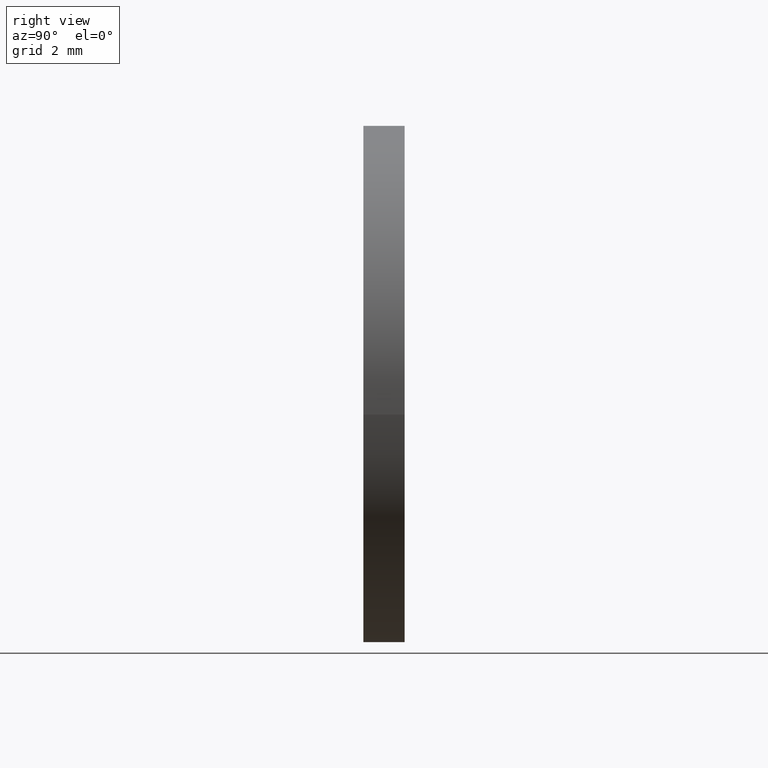
[diagram: clean part render]
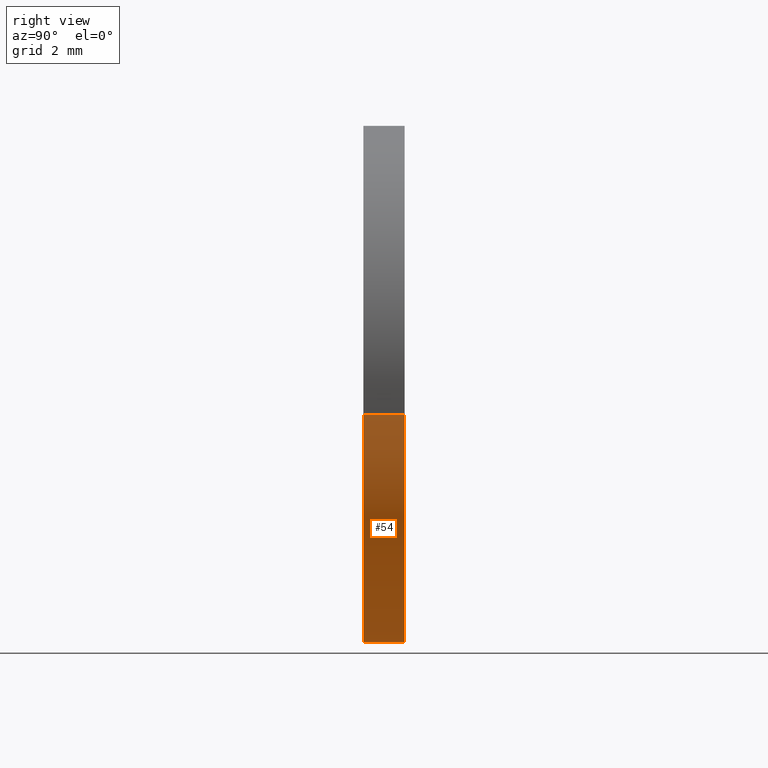
[diagram: same view with one face highlighted and labeled with its STEP entity id]
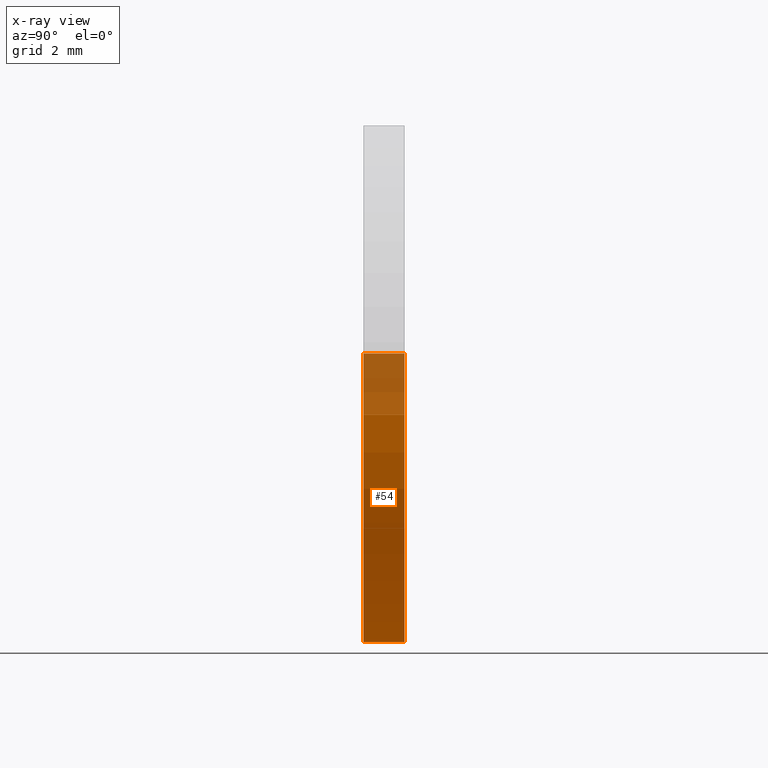
[diagram: x-ray of the same camera — body ghosted, the highlighted face saturated]
A machine part, right view. The second image highlights one B-rep face of the part: STEP entity #54.
The next image is the same camera in x-ray: the body ghosted, the highlighted face saturated — about 21% of this face is hidden behind the body in this view.
In plain terms, the highlighted cylindrical surface (partial cylindrical patch) has radius 5 mm, axis along (0, 1, 0).
Its self-contained STEP definition (entity closure, byte-faithful):
#54=ADVANCED_FACE('',(#199),#198,.T.);
#198=CYLINDRICAL_SURFACE('',#293,5.00000000000E+00);
#199=FACE_OUTER_BOUND('',#294,.T.);
#290=CARTESIAN_POINT('',(1.37523430185E-17,8.20000000000E-01,5.87533409062E-17));
#291=DIRECTION('',(2.44685212766E-17,1.00000000000E+00,2.05851080361E-16));
#292=DIRECTION('',(9.93009526364E-01,-1.54074395551E-32,-1.18034234657E-01));
#293=AXIS2_PLACEMENT_3D('',#290,#291,#292);
#294=EDGE_LOOP('',(#378,#379,#380,#381));
#378=ORIENTED_EDGE('',*,*,#389,.T.);
#379=ORIENTED_EDGE('',*,*,#430,.F.);
#380=ORIENTED_EDGE('',*,*,#404,.F.);
#381=ORIENTED_EDGE('',*,*,#431,.T.);
#389=EDGE_CURVE('',#440,#432,#441,.T.);
#404=EDGE_CURVE('',#538,#545,#546,.T.);
#430=EDGE_CURVE('',#545,#432,#714,.T.);
#431=EDGE_CURVE('',#538,#440,#720,.T.);
#432=VERTEX_POINT('',#726);
#440=VERTEX_POINT('',#732);
#441=CIRCLE('',#736,5.00000000000E+00);
#538=VERTEX_POINT('',#796);
#545=VERTEX_POINT('',#801);
#546=CIRCLE('',#805,5.00000000000E+00);
#714=(BOUNDED_CURVE() B_SPLINE_CURVE(1,(#900,#901),.UNSPECIFIED.,.F.,.F.) B_SPLINE_CURVE_WITH_KNOTS((2,2),(8.33333730703E-02,9.16666640476E-01),.UNSPECIFIED.) CURVE() GEOMETRIC_REPRESENTATION_ITEM() RATIONAL_B_SPLINE_CURVE((1.00000000000E+00,1.00000000000E+00)) REPRESENTATION_ITEM('') );
#720=(BOUNDED_CURVE() B_SPLINE_CURVE(1,(#902,#903),.UNSPECIFIED.,.F.,.F.) B_SPLINE_CURVE_WITH_KNOTS((2,2),(8.33333333344E-02,9.16666666667E-01),.UNSPECIFIED.) CURVE() GEOMETRIC_REPRESENTATION_ITEM() RATIONAL_B_SPLINE_CURVE((7.50000000000E-01,7.50000000000E-01)) REPRESENTATION_ITEM('') );
#726=CARTESIAN_POINT('',(4.96504763614E+00,8.00000000000E-01,-5.90171136897E-01));
#732=CARTESIAN_POINT('',(-4.96494555522E+00,8.00000000000E-01,5.91029300183E-01));
#733=CARTESIAN_POINT('',(-6.76347866602E-13,8.00000000000E-01,-1.48592249616E-12));
#734=DIRECTION('',(7.83833658955E-17,-1.00000000000E+00,2.83194878516E-16));
#735=DIRECTION('',(1.29882216093E-13,2.83194878516E-16,1.00000000000E+00));
#736=AXIS2_PLACEMENT_3D('',#733,#734,#735);
#796=CARTESIAN_POINT('',(-4.96494555522E+00,3.05491903763E-14,5.91029300183E-01));
#801=CARTESIAN_POINT('',(4.96504763614E+00,6.09067045721E-14,-5.90171136897E-01));
#802=CARTESIAN_POINT('',(-6.92335078156E-13,4.56834991596E-14,-1.52189372216E-12));
#803=DIRECTION('',(1.51648246594E-14,-1.00000000000E+00,1.01785512133E-13));
#804=DIRECTION('',(1.41303635459E-13,1.01785512133E-13,1.00000000000E+00));
#805=AXIS2_PLACEMENT_3D('',#802,#803,#804);
#900=CARTESIAN_POINT('',(4.96504763182E+00,3.81464782956E-08,-5.90171173284E-01));
#901=CARTESIAN_POINT('',(4.96504763182E+00,7.99999974857E-01,-5.90171173284E-01));
#902=CARTESIAN_POINT('',(-4.96504763182E+00,4.09302221745E-14,5.90171173284E-01));
#903=CARTESIAN_POINT('',(-4.96504763182E+00,8.00000000000E-01,5.90171173284E-01));